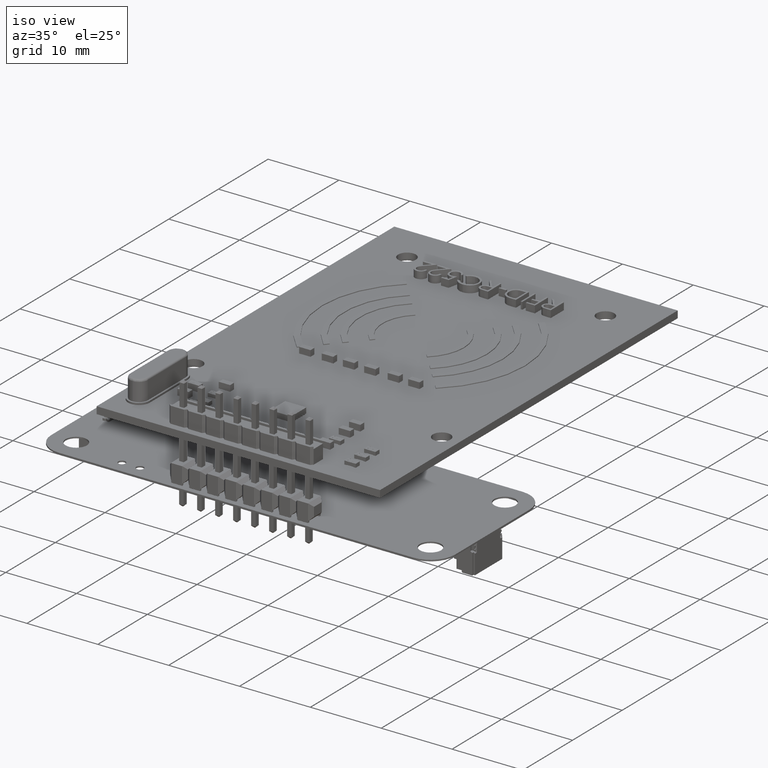
[diagram: clean part render]
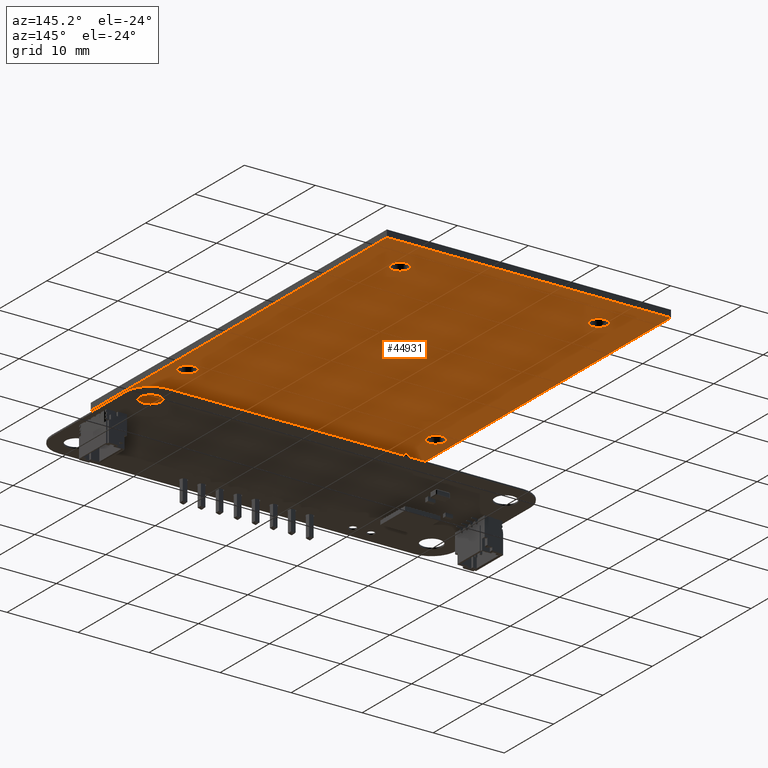
[diagram: tour spotlight — one face highlighted and labeled with its STEP entity id]
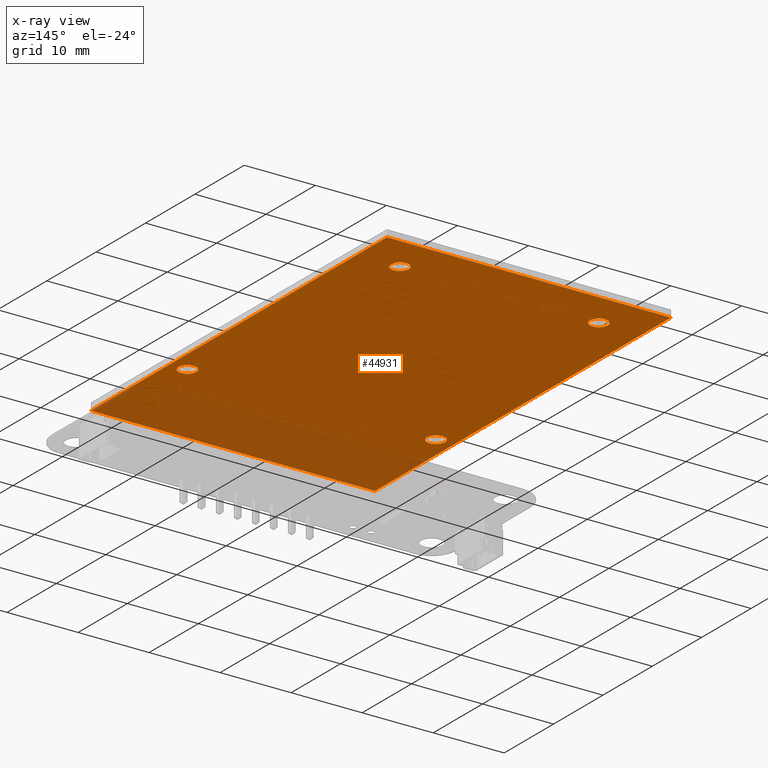
[diagram: x-ray of the same camera — body ghosted, this tour face saturated]
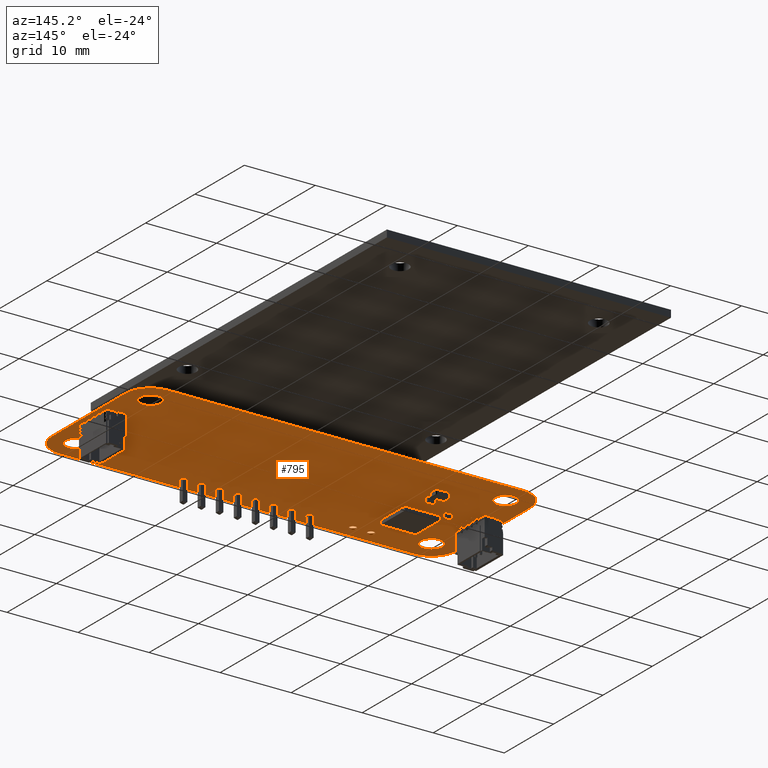
[diagram: tour spotlight — one face highlighted and labeled with its STEP entity id]
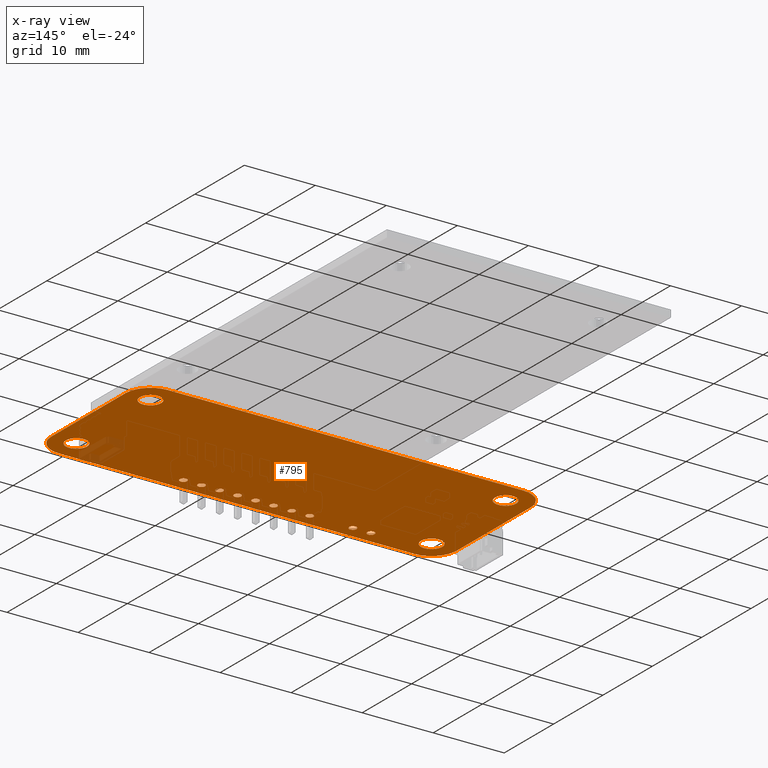
[diagram: x-ray of the same camera — body ghosted, this tour face saturated]
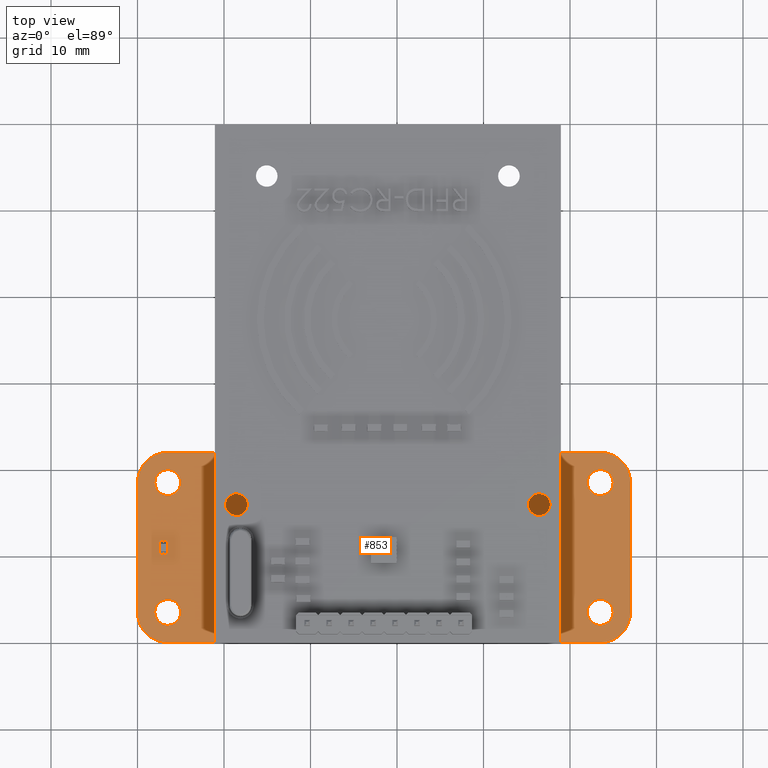
[diagram: tour spotlight — one face highlighted and labeled with its STEP entity id]
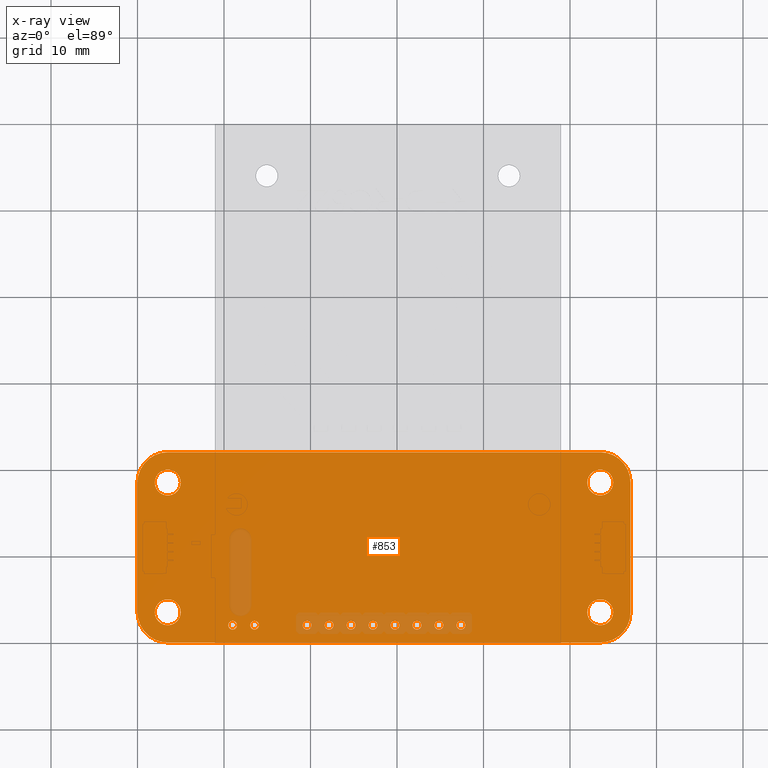
[diagram: x-ray of the same camera — body ghosted, this tour face saturated]
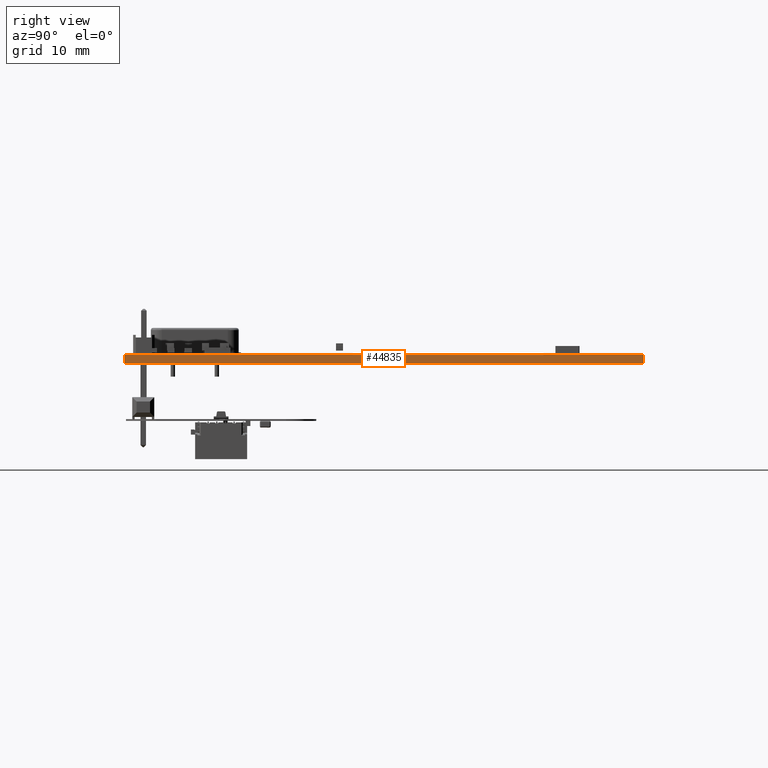
[diagram: tour spotlight — one face highlighted and labeled with its STEP entity id]
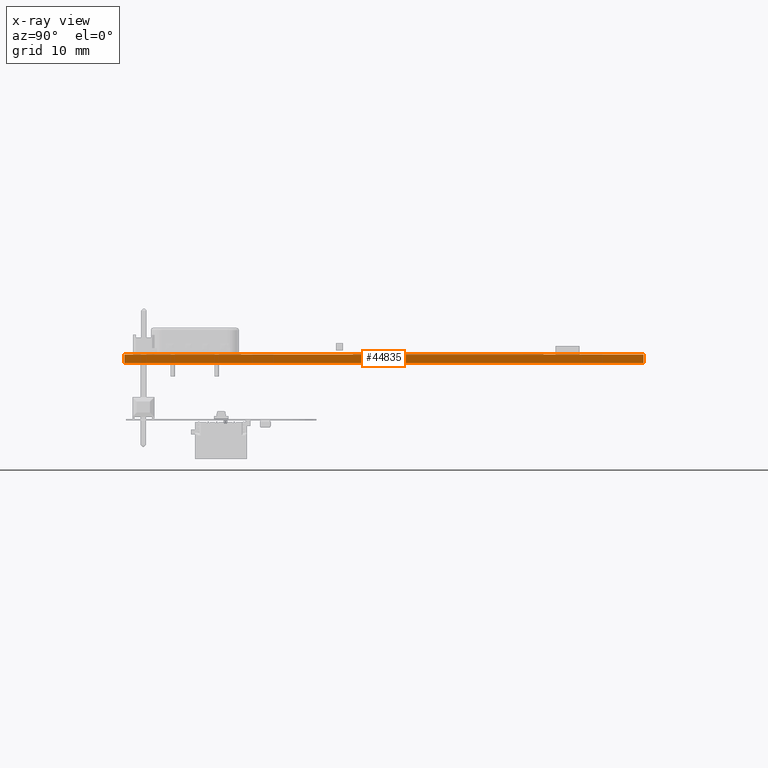
[diagram: x-ray of the same camera — body ghosted, this tour face saturated]
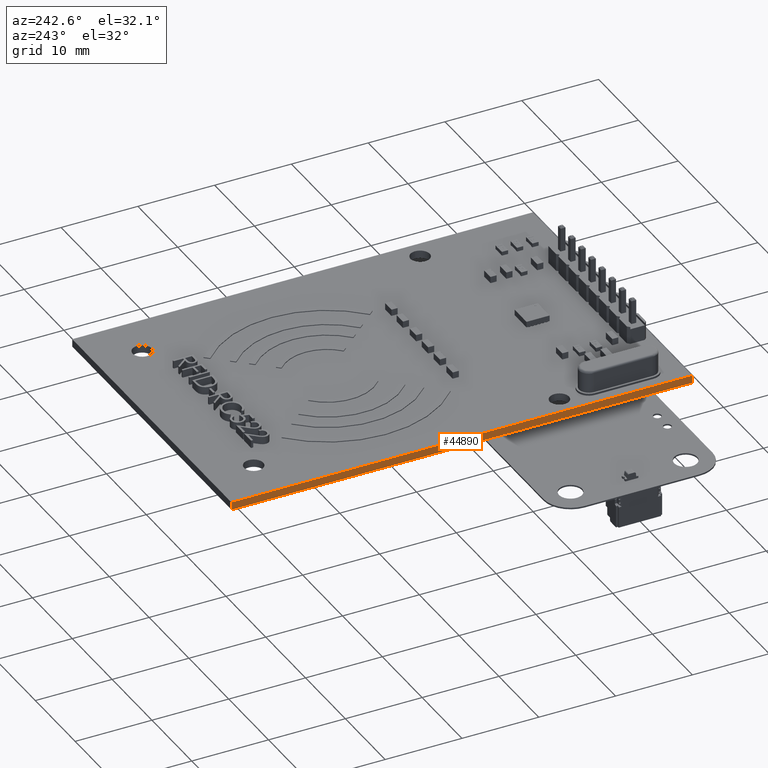
[diagram: tour spotlight — one face highlighted and labeled with its STEP entity id]
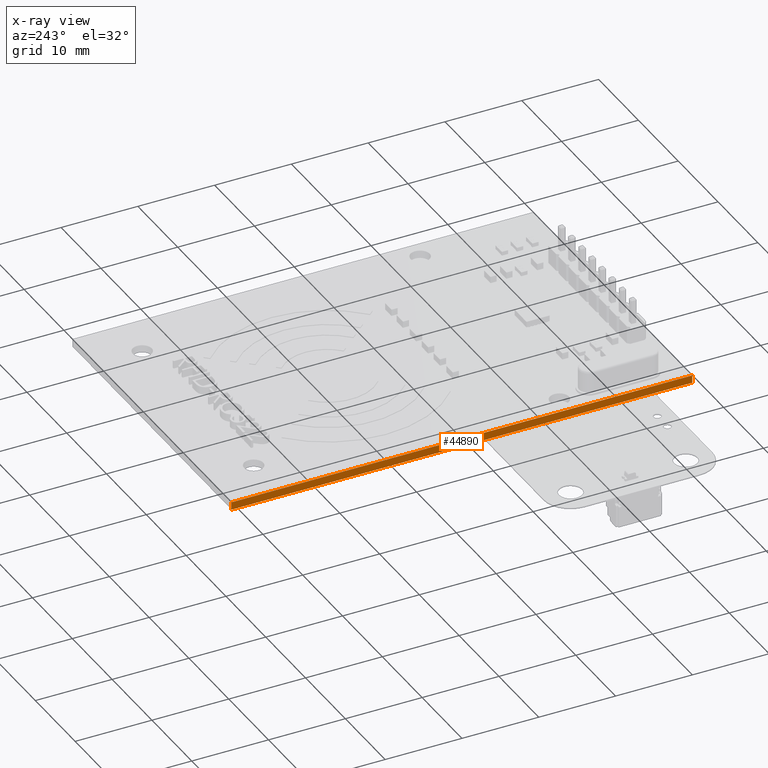
[diagram: x-ray of the same camera — body ghosted, this tour face saturated]
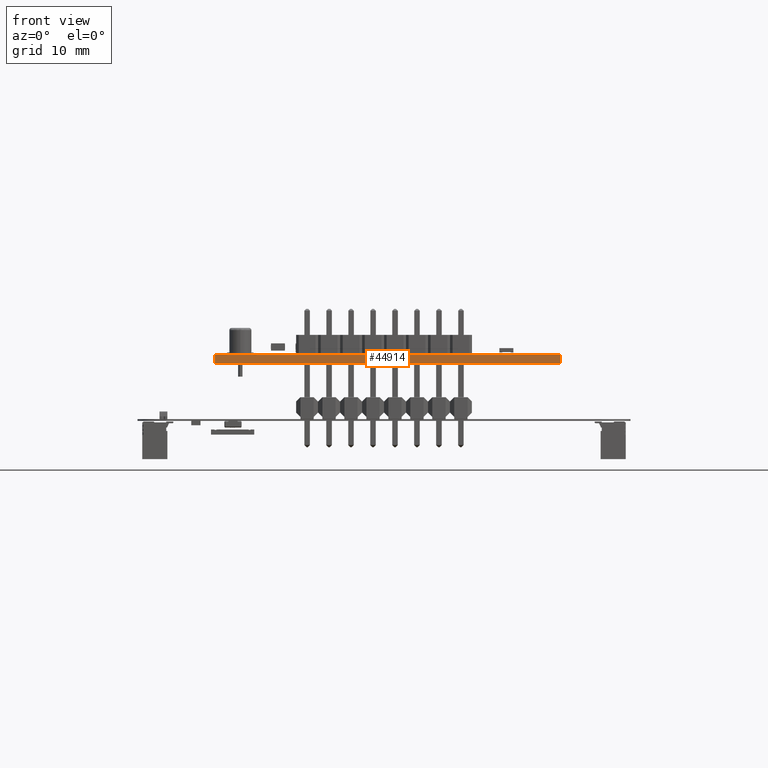
[diagram: tour spotlight — one face highlighted and labeled with its STEP entity id]
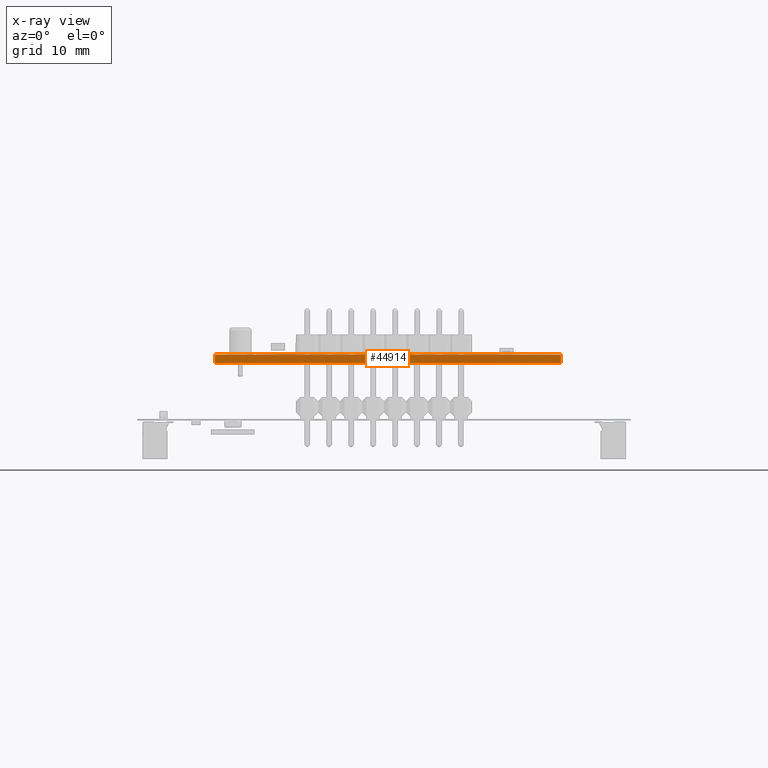
[diagram: x-ray of the same camera — body ghosted, this tour face saturated]
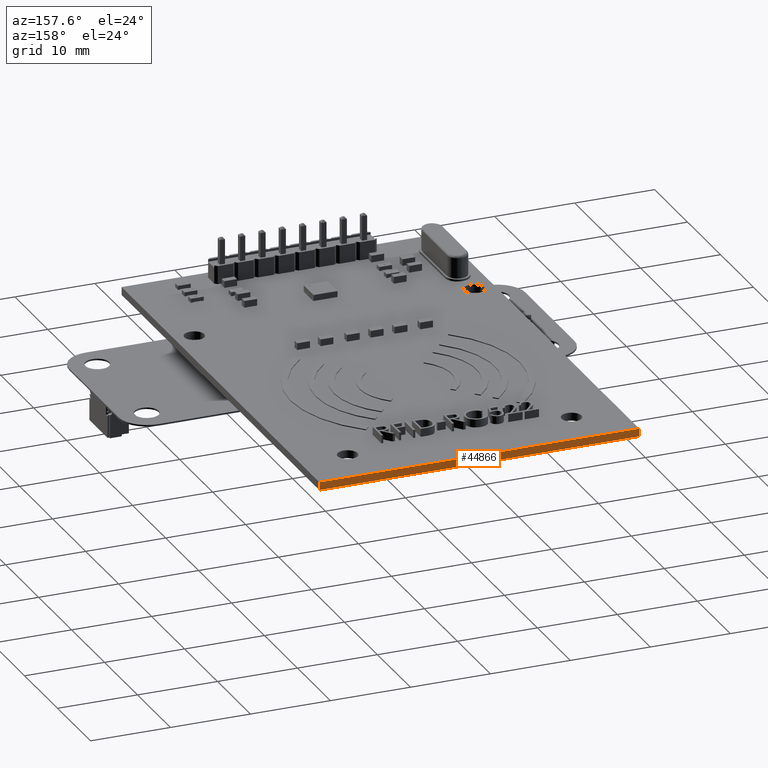
[diagram: tour spotlight — one face highlighted and labeled with its STEP entity id]
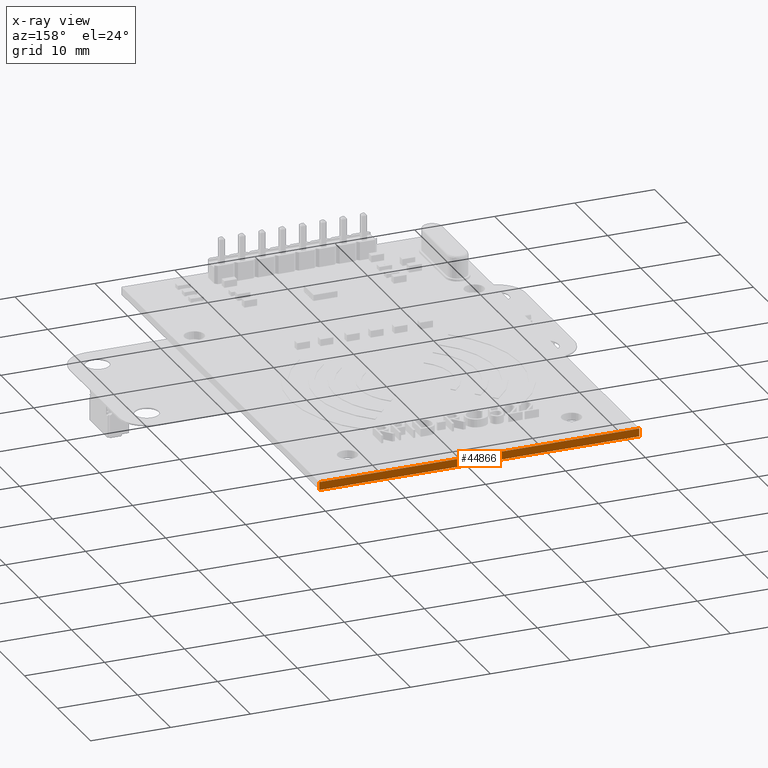
[diagram: x-ray of the same camera — body ghosted, this tour face saturated]
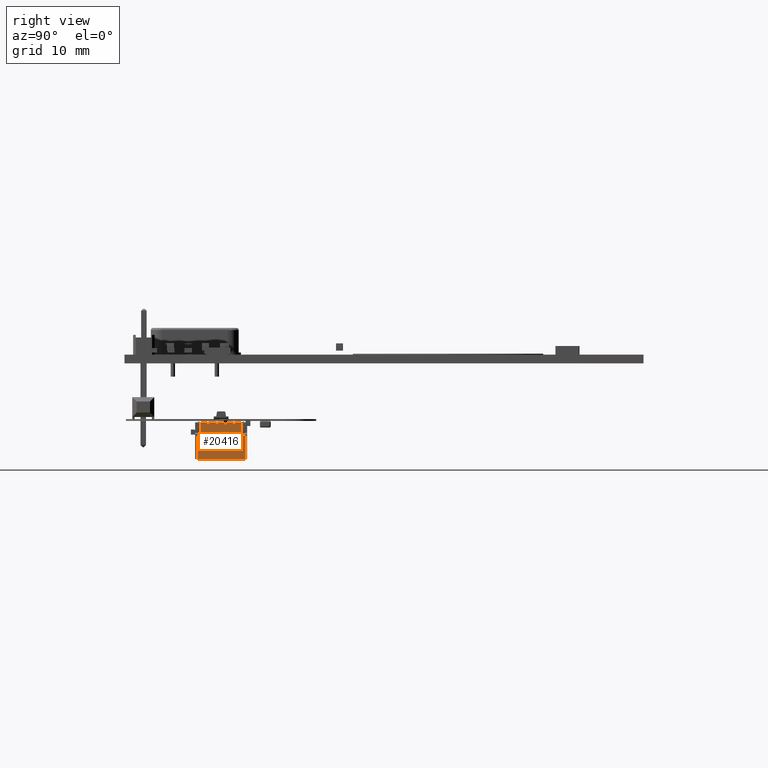
[diagram: tour spotlight — one face highlighted and labeled with its STEP entity id]
A machine part: a face-by-face anatomy tour. The part has 3480 B-rep faces; the first image is the clean iso view, then the 8 largest visible faces are spotlighted one at a time (largest first), each with its STEP entity span.

Face 1 — auxiliary view, entity #44931. An x-ray twin of the same camera follows (body ghosted, this face saturated) — the face is partly hidden behind the body. In plain terms, the highlighted planar face has unit normal (0, 0, 1).
Definition (entity closure, byte-faithful):
#42984 = VERTEX_POINT('',#42985);
#42985 = CARTESIAN_POINT('',(3.75,-16.,0.));
#43003 = VERTEX_POINT('',#43004);
#43004 = CARTESIAN_POINT('',(1.25,-16.,0.));
#43010 = EDGE_CURVE('',#42984,#43003,#43011,.T.);
#43011 = CIRCLE('',#43012,1.25);
#43012 = AXIS2_PLACEMENT_3D('',#43013,#43014,#43015);
#43013 = CARTESIAN_POINT('',(2.5,-16.,0.));
#43014 = DIRECTION('',(0.,0.,-1.));
#43015 = DIRECTION('',(1.,0.,0.));
#43026 = VERTEX_POINT('',#43027);
#43027 = CARTESIAN_POINT('',(38.75,-16.,0.));
#43045 = VERTEX_POINT('',#43046);
#43046 = CARTESIAN_POINT('',(36.25,-16.,0.));
#43052 = EDGE_CURVE('',#43045,#43026,#43053,.T.);
#43053 = CIRCLE('',#43054,1.25);
#43054 = AXIS2_PLACEMENT_3D('',#43055,#43056,#43057);
#43055 = CARTESIAN_POINT('',(37.5,-16.,0.));
#43056 = DIRECTION('',(-0.,0.,1.));
#43057 = DIRECTION('',(1.,0.,0.));
#43068 = VERTEX_POINT('',#43069);
#43069 = CARTESIAN_POINT('',(35.25,-54.,0.));
#43087 = VERTEX_POINT('',#43088);
#43088 = CARTESIAN_POINT('',(32.75,-54.,0.));
#43094 = EDGE_CURVE('',#43087,#43068,#43095,.T.);
#43095 = CIRCLE('',#43096,1.25);
#43096 = AXIS2_PLACEMENT_3D('',#43097,#43098,#43099);
#43097 = CARTESIAN_POINT('',(34.,-54.,0.));
#43098 = DIRECTION('',(-0.,0.,1.));
#43099 = DIRECTION('',(1.,0.,0.));
#43110 = VERTEX_POINT('',#43111);
#43111 = CARTESIAN_POINT('',(7.25,-54.,0.));
#43129 = VERTEX_POINT('',#43130);
#43130 = CARTESIAN_POINT('',(4.75,-54.,0.));
#43136 = EDGE_CURVE('',#43110,#43129,#43137,.T.);
#43137 = CIRCLE('',#43138,1.25);
#43138 = AXIS2_PLACEMENT_3D('',#43139,#43140,#43141);
#43139 = CARTESIAN_POINT('',(6.,-54.,0.));
#43140 = DIRECTION('',(0.,0.,-1.));
#43141 = DIRECTION('',(1.,0.,0.));
#44839 = EDGE_CURVE('',#44840,#44842,#44844,.T.);
#44840 = VERTEX_POINT('',#44841);
#44841 = CARTESIAN_POINT('',(0.,0.,0.));
#44842 = VERTEX_POINT('',#44843);
#44843 = CARTESIAN_POINT('',(7.347880794884E-15,-60.,0.));
#44844 = LINE('',#44845,#44846);
#44845 = CARTESIAN_POINT('',(0.,0.,0.));
#44846 = VECTOR('',#44847,1.);
#44847 = DIRECTION('',(1.224646799147E-16,-1.,0.));
#44870 = EDGE_CURVE('',#44842,#44871,#44873,.T.);
#44871 = VERTEX_POINT('',#44872);
#44872 = CARTESIAN_POINT('',(40.,-60.,0.));
#44873 = LINE('',#44874,#44875);
#44874 = CARTESIAN_POINT('',(7.347880794884E-15,-60.,0.));
#44875 = VECTOR('',#44876,1.);
#44876 = DIRECTION('',(1.,0.,0.));
#44894 = EDGE_CURVE('',#44871,#44895,#44897,.T.);
#44895 = VERTEX_POINT('',#44896);
#44896 = CARTESIAN_POINT('',(40.,0.,0.));
#44897 = LINE('',#44898,#44899);
#44898 = CARTESIAN_POINT('',(40.,0.,0.));
#44899 = VECTOR('',#44900,1.);
#44900 = DIRECTION('',(-0.,1.,-0.));
#44918 = EDGE_CURVE('',#44895,#44840,#44919,.T.);
#44919 = LINE('',#44920,#44921);
#44920 = CARTESIAN_POINT('',(0.,0.,0.));
#44921 = VECTOR('',#44922,1.);
#44922 = DIRECTION('',(-1.,-0.,-0.));
#44931 = ADVANCED_FACE('',(#44932,#44942,#44952,#44962,#44972),#44978,
  .F.);
#44932 = FACE_BOUND('',#44933,.T.);
#44933 = EDGE_LOOP('',(#44934,#44935));
#44934 = ORIENTED_EDGE('',*,*,#43010,.F.);
#44935 = ORIENTED_EDGE('',*,*,#44936,.F.);
#44936 = EDGE_CURVE('',#43003,#42984,#44937,.T.);
#44937 = CIRCLE('',#44938,1.25);
#44938 = AXIS2_PLACEMENT_3D('',#44939,#44940,#44941);
#44939 = CARTESIAN_POINT('',(2.5,-16.,0.));
#44940 = DIRECTION('',(0.,0.,-1.));
#44941 = DIRECTION('',(1.,0.,0.));
#44942 = FACE_BOUND('',#44943,.T.);
#44943 = EDGE_LOOP('',(#44944,#44951));
#44944 = ORIENTED_EDGE('',*,*,#44945,.T.);
#44945 = EDGE_CURVE('',#43026,#43045,#44946,.T.);
#44946 = CIRCLE('',#44947,1.25);
#44947 = AXIS2_PLACEMENT_3D('',#44948,#44949,#44950);
#44948 = CARTESIAN_POINT('',(37.5,-16.,0.));
#44949 = DIRECTION('',(-0.,0.,1.));
#44950 = DIRECTION('',(1.,0.,0.));
#44951 = ORIENTED_EDGE('',*,*,#43052,.T.);
#44952 = FACE_BOUND('',#44953,.T.);
#44953 = EDGE_LOOP('',(#44954,#44961));
#44954 = ORIENTED_EDGE('',*,*,#44955,.T.);
#44955 = EDGE_CURVE('',#43068,#43087,#44956,.T.);
#44956 = CIRCLE('',#44957,1.25);
#44957 = AXIS2_PLACEMENT_3D('',#44958,#44959,#44960);
#44958 = CARTESIAN_POINT('',(34.,-54.,0.));
#44959 = DIRECTION('',(-0.,0.,1.));
#44960 = DIRECTION('',(1.,0.,0.));
#44961 = ORIENTED_EDGE('',*,*,#43094,.T.);
#44962 = FACE_BOUND('',#44963,.T.);
#44963 = EDGE_LOOP('',(#44964,#44965));
#44964 = ORIENTED_EDGE('',*,*,#43136,.F.);
#44965 = ORIENTED_EDGE('',*,*,#44966,.F.);
#44966 = EDGE_CURVE('',#43129,#43110,#44967,.T.);
#44967 = CIRCLE('',#44968,1.25);
#44968 = AXIS2_PLACEMENT_3D('',#44969,#44970,#44971);
#44969 = CARTESIAN_POINT('',(6.,-54.,0.));
#44970 = DIRECTION('',(0.,0.,-1.));
#44971 = DIRECTION('',(1.,0.,0.));
#44972 = FACE_BOUND('',#44973,.T.);
#44973 = EDGE_LOOP('',(#44974,#44975,#44976,#44977));
#44974 = ORIENTED_EDGE('',*,*,#44839,.F.);
#44975 = ORIENTED_EDGE('',*,*,#44918,.F.);
#44976 = ORIENTED_EDGE('',*,*,#44894,.F.);
#44977 = ORIENTED_EDGE('',*,*,#44870,.F.);
#44978 = PLANE('',#44979);
#44979 = AXIS2_PLACEMENT_3D('',#44980,#44981,#44982);
#44980 = CARTESIAN_POINT('',(0.,0.,0.));
#44981 = DIRECTION('',(-0.,0.,1.));
#44982 = DIRECTION('',(1.,0.,0.));

Face 2 — auxiliary view, entity #795. An x-ray twin of the same camera follows (body ghosted, this face saturated) — the face is partly hidden behind the body. In plain terms, the highlighted planar face has unit normal (-0, -0, -1).
Definition (entity closure, byte-faithful):
#82 = VERTEX_POINT('',#83);
#83 = CARTESIAN_POINT('',(0.,3.5,0.));
#100 = VERTEX_POINT('',#101);
#101 = CARTESIAN_POINT('',(-6.661338147751E-16,18.5,0.));
#107 = EDGE_CURVE('',#82,#100,#108,.T.);
#108 = LINE('',#109,#110);
#109 = CARTESIAN_POINT('',(0.,3.5,0.));
#110 = VECTOR('',#111,1.);
#111 = DIRECTION('',(0.,1.,0.));
#132 = VERTEX_POINT('',#133);
#133 = CARTESIAN_POINT('',(3.5,22.,0.));
#139 = EDGE_CURVE('',#100,#132,#140,.T.);
#140 = CIRCLE('',#141,3.499568992062);
#141 = AXIS2_PLACEMENT_3D('',#142,#143,#144);
#142 = CARTESIAN_POINT('',(3.499568965517,18.500431034483,0.));
#143 = DIRECTION('',(0.,0.,-1.));
#144 = DIRECTION('',(-0.999999992415,-1.231678768832E-04,-0.));
#164 = VERTEX_POINT('',#165);
#165 = CARTESIAN_POINT('',(53.5,22.,0.));
#171 = EDGE_CURVE('',#132,#164,#172,.T.);
#172 = LINE('',#173,#174);
#173 = CARTESIAN_POINT('',(3.5,22.,0.));
#174 = VECTOR('',#175,1.);
#175 = DIRECTION('',(1.,0.,0.));
#196 = VERTEX_POINT('',#197);
#197 = CARTESIAN_POINT('',(57.,18.5,0.));
#203 = EDGE_CURVE('',#164,#196,#204,.T.);
#204 = CIRCLE('',#205,3.499568992062);
#205 = AXIS2_PLACEMENT_3D('',#206,#207,#208);
#206 = CARTESIAN_POINT('',(53.500431034483,18.500431034483,0.));
#207 = DIRECTION('',(0.,0.,-1.));
#208 = DIRECTION('',(-1.231678768832E-04,0.999999992415,0.));
#228 = VERTEX_POINT('',#229);
#229 = CARTESIAN_POINT('',(57.,3.5,0.));
#235 = EDGE_CURVE('',#196,#228,#236,.T.);
#236 = LINE('',#237,#238);
#237 = CARTESIAN_POINT('',(57.,18.5,0.));
#238 = VECTOR('',#239,1.);
#239 = DIRECTION('',(0.,-1.,0.));
#260 = VERTEX_POINT('',#261);
#261 = CARTESIAN_POINT('',(53.5,-2.22044604925E-16,0.));
#267 = EDGE_CURVE('',#228,#260,#268,.T.);
#268 = CIRCLE('',#269,3.499568992062);
#269 = AXIS2_PLACEMENT_3D('',#270,#271,#272);
#270 = CARTESIAN_POINT('',(53.500431034483,3.499568965517,0.));
#271 = DIRECTION('',(0.,0.,-1.));
#272 = DIRECTION('',(0.999999992415,1.231678768835E-04,0.));
#292 = VERTEX_POINT('',#293);
#293 = CARTESIAN_POINT('',(3.5,0.,0.));
#299 = EDGE_CURVE('',#260,#292,#300,.T.);
#300 = LINE('',#301,#302);
#301 = CARTESIAN_POINT('',(53.5,0.,0.));
#302 = VECTOR('',#303,1.);
#303 = DIRECTION('',(-1.,0.,0.));
#322 = EDGE_CURVE('',#292,#82,#323,.T.);
#323 = CIRCLE('',#324,3.499568992062);
#324 = AXIS2_PLACEMENT_3D('',#325,#326,#327);
#325 = CARTESIAN_POINT('',(3.499568965517,3.499568965517,0.));
#326 = DIRECTION('',(0.,0.,-1.));
#327 = DIRECTION('',(1.231678768834E-04,-0.999999992415,0.));
#338 = VERTEX_POINT('',#339);
#339 = CARTESIAN_POINT('',(20.12,2.,0.));
#355 = EDGE_CURVE('',#338,#338,#356,.T.);
#356 = CIRCLE('',#357,0.51);
#357 = AXIS2_PLACEMENT_3D('',#358,#359,#360);
#358 = CARTESIAN_POINT('',(19.61,2.,0.));
#359 = DIRECTION('',(0.,0.,1.));
#360 = DIRECTION('',(1.,0.,-0.));
#371 = VERTEX_POINT('',#372);
#372 = CARTESIAN_POINT('',(25.2,2.,0.));
#388 = EDGE_CURVE('',#371,#371,#389,.T.);
#389 = CIRCLE('',#390,0.51);
#390 = AXIS2_PLACEMENT_3D('',#391,#392,#393);
#391 = CARTESIAN_POINT('',(24.69,2.,0.));
#392 = DIRECTION('',(0.,0.,1.));
#393 = DIRECTION('',(1.,0.,-0.));
#404 = VERTEX_POINT('',#405);
#405 = CARTESIAN_POINT('',(22.66,2.,0.));
#421 = EDGE_CURVE('',#404,#404,#422,.T.);
#422 = CIRCLE('',#423,0.51);
#423 = AXIS2_PLACEMENT_3D('',#424,#425,#426);
#424 = CARTESIAN_POINT('',(22.15,2.,0.));
#425 = DIRECTION('',(0.,0.,1.));
#426 = DIRECTION('',(1.,0.,-0.));
#437 = VERTEX_POINT('',#438);
#438 = CARTESIAN_POINT('',(5.,3.5,0.));
#454 = EDGE_CURVE('',#437,#437,#455,.T.);
#455 = CIRCLE('',#456,1.5);
#456 = AXIS2_PLACEMENT_3D('',#457,#458,#459);
#457 = CARTESIAN_POINT('',(3.5,3.5,0.));
#458 = DIRECTION('',(0.,0.,1.));
#459 = DIRECTION('',(1.,0.,-0.));
#470 = VERTEX_POINT('',#471);
#471 = CARTESIAN_POINT('',(5.,18.5,0.));
#487 = EDGE_CURVE('',#470,#470,#488,.T.);
#488 = CIRCLE('',#489,1.5);
#489 = AXIS2_PLACEMENT_3D('',#490,#491,#492);
#490 = CARTESIAN_POINT('',(3.5,18.5,0.));
#491 = DIRECTION('',(0.,0.,1.));
#492 = DIRECTION('',(1.,0.,-0.));
#503 = VERTEX_POINT('',#504);
#504 = CARTESIAN_POINT('',(14.048,2.,0.));
#520 = EDGE_CURVE('',#503,#503,#521,.T.);
#521 = CIRCLE('',#522,0.508);
#522 = AXIS2_PLACEMENT_3D('',#523,#524,#525);
#523 = CARTESIAN_POINT('',(13.54,2.,0.));
#524 = DIRECTION('',(0.,0.,1.));
#525 = DIRECTION('',(1.,0.,-0.));
#536 = VERTEX_POINT('',#537);
#537 = CARTESIAN_POINT('',(11.508,2.,0.));
#553 = EDGE_CURVE('',#536,#536,#554,.T.);
#554 = CIRCLE('',#555,0.508);
#555 = AXIS2_PLACEMENT_3D('',#556,#557,#558);
#556 = CARTESIAN_POINT('',(11.,2.,0.));
#557 = DIRECTION('',(0.,0.,1.));
#558 = DIRECTION('',(1.,0.,-0.));
#569 = VERTEX_POINT('',#570);
#570 = CARTESIAN_POINT('',(27.74,2.,0.));
#586 = EDGE_CURVE('',#569,#569,#587,.T.);
#587 = CIRCLE('',#588,0.51);
#588 = AXIS2_PLACEMENT_3D('',#589,#590,#591);
#589 = CARTESIAN_POINT('',(27.23,2.,0.));
#590 = DIRECTION('',(0.,0.,1.));
#591 = DIRECTION('',(1.,0.,-0.));
#602 = VERTEX_POINT('',#603);
#603 = CARTESIAN_POINT('',(32.82,2.,0.));
#619 = EDGE_CURVE('',#602,#602,#620,.T.);
#620 = CIRCLE('',#621,0.51);
#621 = AXIS2_PLACEMENT_3D('',#622,#623,#624);
#622 = CARTESIAN_POINT('',(32.31,2.,0.));
#623 = DIRECTION('',(0.,0.,1.));
#624 = DIRECTION('',(1.,0.,-0.));
#635 = VERTEX_POINT('',#636);
#636 = CARTESIAN_POINT('',(30.28,2.,0.));
#652 = EDGE_CURVE('',#635,#635,#653,.T.);
#653 = CIRCLE('',#654,0.51);
#654 = AXIS2_PLACEMENT_3D('',#655,#656,#657);
#655 = CARTESIAN_POINT('',(29.77,2.,0.));
#656 = DIRECTION('',(0.,0.,1.));
#657 = DIRECTION('',(1.,0.,-0.));
#668 = VERTEX_POINT('',#669);
#669 = CARTESIAN_POINT('',(37.9,2.,0.));
#685 = EDGE_CURVE('',#668,#668,#686,.T.);
#686 = CIRCLE('',#687,0.51);
#687 = AXIS2_PLACEMENT_3D('',#688,#689,#690);
#688 = CARTESIAN_POINT('',(37.39,2.,0.));
#689 = DIRECTION('',(0.,0.,1.));
#690 = DIRECTION('',(1.,0.,-0.));
#701 = VERTEX_POINT('',#702);
#702 = CARTESIAN_POINT('',(35.36,2.,0.));
#718 = EDGE_CURVE('',#701,#701,#719,.T.);
#719 = CIRCLE('',#720,0.51);
#720 = AXIS2_PLACEMENT_3D('',#721,#722,#723);
#721 = CARTESIAN_POINT('',(34.85,2.,0.));
#722 = DIRECTION('',(0.,0.,1.));
#723 = DIRECTION('',(1.,0.,-0.));
#734 = VERTEX_POINT('',#735);
#735 = CARTESIAN_POINT('',(55.,3.5,0.));
#751 = EDGE_CURVE('',#734,#734,#752,.T.);
#752 = CIRCLE('',#753,1.5);
#753 = AXIS2_PLACEMENT_3D('',#754,#755,#756);
#754 = CARTESIAN_POINT('',(53.5,3.5,0.));
#755 = DIRECTION('',(0.,0.,1.));
#756 = DIRECTION('',(1.,0.,-0.));
#767 = VERTEX_POINT('',#768);
#768 = CARTESIAN_POINT('',(55.,18.5,0.));
#784 = EDGE_CURVE('',#767,#767,#785,.T.);
#785 = CIRCLE('',#786,1.5);
#786 = AXIS2_PLACEMENT_3D('',#787,#788,#789);
#787 = CARTESIAN_POINT('',(53.5,18.5,0.));
#788 = DIRECTION('',(0.,0.,1.));
#789 = DIRECTION('',(1.,0.,-0.));
#795 = ADVANCED_FACE('',(#796,#806,#809,#812,#815,#818,#821,#824,#827,
    #830,#833,#836,#839,#842,#845),#848,.T.);
#796 = FACE_BOUND('',#797,.T.);
#797 = EDGE_LOOP('',(#798,#799,#800,#801,#802,#803,#804,#805));
#798 = ORIENTED_EDGE('',*,*,#107,.T.);
#799 = ORIENTED_EDGE('',*,*,#139,.T.);
#800 = ORIENTED_EDGE('',*,*,#171,.T.);
#801 = ORIENTED_EDGE('',*,*,#203,.T.);
#802 = ORIENTED_EDGE('',*,*,#235,.T.);
#803 = ORIENTED_EDGE('',*,*,#267,.T.);
#804 = ORIENTED_EDGE('',*,*,#299,.T.);
#805 = ORIENTED_EDGE('',*,*,#322,.T.);
#806 = FACE_BOUND('',#807,.T.);
#807 = EDGE_LOOP('',(#808));
#808 = ORIENTED_EDGE('',*,*,#355,.T.);
#809 = FACE_BOUND('',#810,.T.);
#810 = EDGE_LOOP('',(#811));
#811 = ORIENTED_EDGE('',*,*,#388,.T.);
#812 = FACE_BOUND('',#813,.T.);
#813 = EDGE_LOOP('',(#814));
#814 = ORIENTED_EDGE('',*,*,#421,.T.);
#815 = FACE_BOUND('',#816,.T.);
#816 = EDGE_LOOP('',(#817));
#817 = ORIENTED_EDGE('',*,*,#454,.T.);
#818 = FACE_BOUND('',#819,.T.);
#819 = EDGE_LOOP('',(#820));
#820 = ORIENTED_EDGE('',*,*,#487,.T.);
#821 = FACE_BOUND('',#822,.T.);
#822 = EDGE_LOOP('',(#823));
#823 = ORIENTED_EDGE('',*,*,#520,.T.);
#824 = FACE_BOUND('',#825,.T.);
#825 = EDGE_LOOP('',(#826));
#826 = ORIENTED_EDGE('',*,*,#553,.T.);
#827 = FACE_BOUND('',#828,.T.);
#828 = EDGE_LOOP('',(#829));
#829 = ORIENTED_EDGE('',*,*,#586,.T.);
#830 = FACE_BOUND('',#831,.T.);
#831 = EDGE_LOOP('',(#832));
#832 = ORIENTED_EDGE('',*,*,#619,.T.);
#833 = FACE_BOUND('',#834,.T.);
#834 = EDGE_LOOP('',(#835));
#835 = ORIENTED_EDGE('',*,*,#652,.T.);
#836 = FACE_BOUND('',#837,.T.);
#837 = EDGE_LOOP('',(#838));
#838 = ORIENTED_EDGE('',*,*,#685,.T.);
#839 = FACE_BOUND('',#840,.T.);
#840 = EDGE_LOOP('',(#841));
#841 = ORIENTED_EDGE('',*,*,#718,.T.);
#842 = FACE_BOUND('',#843,.T.);
#843 = EDGE_LOOP('',(#844));
#844 = ORIENTED_EDGE('',*,*,#751,.T.);
#845 = FACE_BOUND('',#846,.T.);
#846 = EDGE_LOOP('',(#847));
#847 = ORIENTED_EDGE('',*,*,#784,.T.);
#848 = PLANE('',#849);
#849 = AXIS2_PLACEMENT_3D('',#850,#851,#852);
#850 = CARTESIAN_POINT('',(28.5,11.,0.));
#851 = DIRECTION('',(-0.,-0.,-1.));
#852 = DIRECTION('',(-1.,0.,0.));

Face 3 — top view, entity #853. An x-ray twin of the same camera follows (body ghosted, this face saturated) — the face is partly hidden behind the body. In plain terms, the highlighted planar face has unit normal (-0, -0, -1).
Definition (entity closure, byte-faithful):
#84 = VERTEX_POINT('',#85);
#85 = CARTESIAN_POINT('',(0.,3.5,0.1970024));
#91 = EDGE_CURVE('',#84,#92,#94,.T.);
#92 = VERTEX_POINT('',#93);
#93 = CARTESIAN_POINT('',(-6.661338147751E-16,18.5,0.1970024));
#94 = LINE('',#95,#96);
#95 = CARTESIAN_POINT('',(0.,3.5,0.1970024));
#96 = VECTOR('',#97,1.);
#97 = DIRECTION('',(0.,1.,0.));
#122 = EDGE_CURVE('',#92,#123,#125,.T.);
#123 = VERTEX_POINT('',#124);
#124 = CARTESIAN_POINT('',(3.5,22.,0.1970024));
#125 = CIRCLE('',#126,3.499568992062);
#126 = AXIS2_PLACEMENT_3D('',#127,#128,#129);
#127 = CARTESIAN_POINT('',(3.499568965517,18.500431034483,0.1970024));
#128 = DIRECTION('',(0.,0.,-1.));
#129 = DIRECTION('',(-0.999999992415,-1.231678768832E-04,-0.));
#155 = EDGE_CURVE('',#123,#156,#158,.T.);
#156 = VERTEX_POINT('',#157);
#157 = CARTESIAN_POINT('',(53.5,22.,0.1970024));
#158 = LINE('',#159,#160);
#159 = CARTESIAN_POINT('',(3.5,22.,0.1970024));
#160 = VECTOR('',#161,1.);
#161 = DIRECTION('',(1.,0.,0.));
#186 = EDGE_CURVE('',#156,#187,#189,.T.);
#187 = VERTEX_POINT('',#188);
#188 = CARTESIAN_POINT('',(57.,18.5,0.1970024));
#189 = CIRCLE('',#190,3.499568992062);
#190 = AXIS2_PLACEMENT_3D('',#191,#192,#193);
#191 = CARTESIAN_POINT('',(53.500431034483,18.500431034483,0.1970024));
#192 = DIRECTION('',(0.,0.,-1.));
#193 = DIRECTION('',(-1.231678768832E-04,0.999999992415,0.));
#219 = EDGE_CURVE('',#187,#220,#222,.T.);
#220 = VERTEX_POINT('',#221);
#221 = CARTESIAN_POINT('',(57.,3.5,0.1970024));
#222 = LINE('',#223,#224);
#223 = CARTESIAN_POINT('',(57.,18.5,0.1970024));
#224 = VECTOR('',#225,1.);
#225 = DIRECTION('',(0.,-1.,0.));
#250 = EDGE_CURVE('',#220,#251,#253,.T.);
#251 = VERTEX_POINT('',#252);
#252 = CARTESIAN_POINT('',(53.5,-2.22044604925E-16,0.1970024));
#253 = CIRCLE('',#254,3.499568992062);
#254 = AXIS2_PLACEMENT_3D('',#255,#256,#257);
#255 = CARTESIAN_POINT('',(53.500431034483,3.499568965517,0.1970024));
#256 = DIRECTION('',(0.,0.,-1.));
#257 = DIRECTION('',(0.999999992415,1.231678768835E-04,0.));
#283 = EDGE_CURVE('',#251,#284,#286,.T.);
#284 = VERTEX_POINT('',#285);
#285 = CARTESIAN_POINT('',(3.5,0.,0.1970024));
#286 = LINE('',#287,#288);
#287 = CARTESIAN_POINT('',(53.5,0.,0.1970024));
#288 = VECTOR('',#289,1.);
#289 = DIRECTION('',(-1.,0.,0.));
#314 = EDGE_CURVE('',#284,#84,#315,.T.);
#315 = CIRCLE('',#316,3.499568992062);
#316 = AXIS2_PLACEMENT_3D('',#317,#318,#319);
#317 = CARTESIAN_POINT('',(3.499568965517,3.499568965517,0.1970024));
#318 = DIRECTION('',(0.,0.,-1.));
#319 = DIRECTION('',(1.231678768834E-04,-0.999999992415,0.));
#340 = VERTEX_POINT('',#341);
#341 = CARTESIAN_POINT('',(20.12,2.,0.1970024));
#347 = EDGE_CURVE('',#340,#340,#348,.T.);
#348 = CIRCLE('',#349,0.51);
#349 = AXIS2_PLACEMENT_3D('',#350,#351,#352);
#350 = CARTESIAN_POINT('',(19.61,2.,0.1970024));
#351 = DIRECTION('',(0.,0.,1.));
#352 = DIRECTION('',(1.,0.,-0.));
#373 = VERTEX_POINT('',#374);
#374 = CARTESIAN_POINT('',(25.2,2.,0.1970024));
#380 = EDGE_CURVE('',#373,#373,#381,.T.);
#381 = CIRCLE('',#382,0.51);
#382 = AXIS2_PLACEMENT_3D('',#383,#384,#385);
#383 = CARTESIAN_POINT('',(24.69,2.,0.1970024));
#384 = DIRECTION('',(0.,0.,1.));
#385 = DIRECTION('',(1.,0.,-0.));
#406 = VERTEX_POINT('',#407);
#407 = CARTESIAN_POINT('',(22.66,2.,0.1970024));
#413 = EDGE_CURVE('',#406,#406,#414,.T.);
#414 = CIRCLE('',#415,0.51);
#415 = AXIS2_PLACEMENT_3D('',#416,#417,#418);
#416 = CARTESIAN_POINT('',(22.15,2.,0.1970024));
#417 = DIRECTION('',(0.,0.,1.));
#418 = DIRECTION('',(1.,0.,-0.));
#439 = VERTEX_POINT('',#440);
#440 = CARTESIAN_POINT('',(5.,3.5,0.1970024));
#446 = EDGE_CURVE('',#439,#439,#447,.T.);
#447 = CIRCLE('',#448,1.5);
#448 = AXIS2_PLACEMENT_3D('',#449,#450,#451);
#449 = CARTESIAN_POINT('',(3.5,3.5,0.1970024));
#450 = DIRECTION('',(0.,0.,1.));
#451 = DIRECTION('',(1.,0.,-0.));
#472 = VERTEX_POINT('',#473);
#473 = CARTESIAN_POINT('',(5.,18.5,0.1970024));
#479 = EDGE_CURVE('',#472,#472,#480,.T.);
#480 = CIRCLE('',#481,1.5);
#481 = AXIS2_PLACEMENT_3D('',#482,#483,#484);
#482 = CARTESIAN_POINT('',(3.5,18.5,0.1970024));
#483 = DIRECTION('',(0.,0.,1.));
#484 = DIRECTION('',(1.,0.,-0.));
#505 = VERTEX_POINT('',#506);
#506 = CARTESIAN_POINT('',(14.048,2.,0.1970024));
#512 = EDGE_CURVE('',#505,#505,#513,.T.);
#513 = CIRCLE('',#514,0.508);
#514 = AXIS2_PLACEMENT_3D('',#515,#516,#517);
#515 = CARTESIAN_POINT('',(13.54,2.,0.1970024));
#516 = DIRECTION('',(0.,0.,1.));
#517 = DIRECTION('',(1.,0.,-0.));
#538 = VERTEX_POINT('',#539);
#539 = CARTESIAN_POINT('',(11.508,2.,0.1970024));
#545 = EDGE_CURVE('',#538,#538,#546,.T.);
#546 = CIRCLE('',#547,0.508);
#547 = AXIS2_PLACEMENT_3D('',#548,#549,#550);
#548 = CARTESIAN_POINT('',(11.,2.,0.1970024));
#549 = DIRECTION('',(0.,0.,1.));
#550 = DIRECTION('',(1.,0.,-0.));
#571 = VERTEX_POINT('',#572);
#572 = CARTESIAN_POINT('',(27.74,2.,0.1970024));
#578 = EDGE_CURVE('',#571,#571,#579,.T.);
#579 = CIRCLE('',#580,0.51);
#580 = AXIS2_PLACEMENT_3D('',#581,#582,#583);
#581 = CARTESIAN_POINT('',(27.23,2.,0.1970024));
#582 = DIRECTION('',(0.,0.,1.));
#583 = DIRECTION('',(1.,0.,-0.));
#604 = VERTEX_POINT('',#605);
#605 = CARTESIAN_POINT('',(32.82,2.,0.1970024));
#611 = EDGE_CURVE('',#604,#604,#612,.T.);
#612 = CIRCLE('',#613,0.51);
#613 = AXIS2_PLACEMENT_3D('',#614,#615,#616);
#614 = CARTESIAN_POINT('',(32.31,2.,0.1970024));
#615 = DIRECTION('',(0.,0.,1.));
#616 = DIRECTION('',(1.,0.,-0.));
#637 = VERTEX_POINT('',#638);
#638 = CARTESIAN_POINT('',(30.28,2.,0.1970024));
#644 = EDGE_CURVE('',#637,#637,#645,.T.);
#645 = CIRCLE('',#646,0.51);
#646 = AXIS2_PLACEMENT_3D('',#647,#648,#649);
#647 = CARTESIAN_POINT('',(29.77,2.,0.1970024));
#648 = DIRECTION('',(0.,0.,1.));
#649 = DIRECTION('',(1.,0.,-0.));
#670 = VERTEX_POINT('',#671);
#671 = CARTESIAN_POINT('',(37.9,2.,0.1970024));
#677 = EDGE_CURVE('',#670,#670,#678,.T.);
#678 = CIRCLE('',#679,0.51);
#679 = AXIS2_PLACEMENT_3D('',#680,#681,#682);
#680 = CARTESIAN_POINT('',(37.39,2.,0.1970024));
#681 = DIRECTION('',(0.,0.,1.));
#682 = DIRECTION('',(1.,0.,-0.));
#703 = VERTEX_POINT('',#704);
#704 = CARTESIAN_POINT('',(35.36,2.,0.1970024));
#710 = EDGE_CURVE('',#703,#703,#711,.T.);
#711 = CIRCLE('',#712,0.51);
#712 = AXIS2_PLACEMENT_3D('',#713,#714,#715);
#713 = CARTESIAN_POINT('',(34.85,2.,0.1970024));
#714 = DIRECTION('',(0.,0.,1.));
#715 = DIRECTION('',(1.,0.,-0.));
#736 = VERTEX_POINT('',#737);
#737 = CARTESIAN_POINT('',(55.,3.5,0.1970024));
#743 = EDGE_CURVE('',#736,#736,#744,.T.);
#744 = CIRCLE('',#745,1.5);
#745 = AXIS2_PLACEMENT_3D('',#746,#747,#748);
#746 = CARTESIAN_POINT('',(53.5,3.5,0.1970024));
#747 = DIRECTION('',(0.,0.,1.));
#748 = DIRECTION('',(1.,0.,-0.));
#769 = VERTEX_POINT('',#770);
#770 = CARTESIAN_POINT('',(55.,18.5,0.1970024));
#776 = EDGE_CURVE('',#769,#769,#777,.T.);
#777 = CIRCLE('',#778,1.5);
#778 = AXIS2_PLACEMENT_3D('',#779,#780,#781);
#779 = CARTESIAN_POINT('',(53.5,18.5,0.1970024));
#780 = DIRECTION('',(0.,0.,1.));
#781 = DIRECTION('',(1.,0.,-0.));
#853 = ADVANCED_FACE('',(#854,#864,#867,#870,#873,#876,#879,#882,#885,
    #888,#891,#894,#897,#900,#903),#906,.F.);
#854 = FACE_BOUND('',#855,.F.);
#855 = EDGE_LOOP('',(#856,#857,#858,#859,#860,#861,#862,#863));
#856 = ORIENTED_EDGE('',*,*,#91,.T.);
#857 = ORIENTED_EDGE('',*,*,#122,.T.);
#858 = ORIENTED_EDGE('',*,*,#155,.T.);
#859 = ORIENTED_EDGE('',*,*,#186,.T.);
#860 = ORIENTED_EDGE('',*,*,#219,.T.);
#861 = ORIENTED_EDGE('',*,*,#250,.T.);
#862 = ORIENTED_EDGE('',*,*,#283,.T.);
#863 = ORIENTED_EDGE('',*,*,#314,.T.);
#864 = FACE_BOUND('',#865,.F.);
#865 = EDGE_LOOP('',(#866));
#866 = ORIENTED_EDGE('',*,*,#347,.T.);
#867 = FACE_BOUND('',#868,.F.);
#868 = EDGE_LOOP('',(#869));
#869 = ORIENTED_EDGE('',*,*,#380,.T.);
#870 = FACE_BOUND('',#871,.F.);
#871 = EDGE_LOOP('',(#872));
#872 = ORIENTED_EDGE('',*,*,#413,.T.);
#873 = FACE_BOUND('',#874,.F.);
#874 = EDGE_LOOP('',(#875));
#875 = ORIENTED_EDGE('',*,*,#446,.T.);
#876 = FACE_BOUND('',#877,.F.);
#877 = EDGE_LOOP('',(#878));
#878 = ORIENTED_EDGE('',*,*,#479,.T.);
#879 = FACE_BOUND('',#880,.F.);
#880 = EDGE_LOOP('',(#881));
#881 = ORIENTED_EDGE('',*,*,#512,.T.);
#882 = FACE_BOUND('',#883,.F.);
#883 = EDGE_LOOP('',(#884));
#884 = ORIENTED_EDGE('',*,*,#545,.T.);
#885 = FACE_BOUND('',#886,.F.);
#886 = EDGE_LOOP('',(#887));
#887 = ORIENTED_EDGE('',*,*,#578,.T.);
#888 = FACE_BOUND('',#889,.F.);
#889 = EDGE_LOOP('',(#890));
#890 = ORIENTED_EDGE('',*,*,#611,.T.);
#891 = FACE_BOUND('',#892,.F.);
#892 = EDGE_LOOP('',(#893));
#893 = ORIENTED_EDGE('',*,*,#644,.T.);
#894 = FACE_BOUND('',#895,.F.);
#895 = EDGE_LOOP('',(#896));
#896 = ORIENTED_EDGE('',*,*,#677,.T.);
#897 = FACE_BOUND('',#898,.F.);
#898 = EDGE_LOOP('',(#899));
#899 = ORIENTED_EDGE('',*,*,#710,.T.);
#900 = FACE_BOUND('',#901,.F.);
#901 = EDGE_LOOP('',(#902));
#902 = ORIENTED_EDGE('',*,*,#743,.T.);
#903 = FACE_BOUND('',#904,.F.);
#904 = EDGE_LOOP('',(#905));
#905 = ORIENTED_EDGE('',*,*,#776,.T.);
#906 = PLANE('',#907);
#907 = AXIS2_PLACEMENT_3D('',#908,#909,#910);
#908 = CARTESIAN_POINT('',(28.5,11.,0.1970024));
#909 = DIRECTION('',(-0.,-0.,-1.));
#910 = DIRECTION('',(-1.,0.,0.));

Face 4 — right view, entity #44835. An x-ray twin of the same camera follows (body ghosted, this face saturated) — the face is partly hidden behind the body. In plain terms, the highlighted planar face has unit normal (-1, -0, 0).
Definition (entity closure, byte-faithful):
#44799 = EDGE_CURVE('',#44800,#44802,#44804,.T.);
#44800 = VERTEX_POINT('',#44801);
#44801 = CARTESIAN_POINT('',(0.,0.,1.));
#44802 = VERTEX_POINT('',#44803);
#44803 = CARTESIAN_POINT('',(7.347880794884E-15,-60.,1.));
#44804 = LINE('',#44805,#44806);
#44805 = CARTESIAN_POINT('',(0.,0.,1.));
#44806 = VECTOR('',#44807,1.);
#44807 = DIRECTION('',(1.224646799147E-16,-1.,0.));
#44835 = ADVANCED_FACE('',(#44836),#44861,.F.);
#44836 = FACE_BOUND('',#44837,.T.);
#44837 = EDGE_LOOP('',(#44838,#44848,#44854,#44855));
#44838 = ORIENTED_EDGE('',*,*,#44839,.T.);
#44839 = EDGE_CURVE('',#44840,#44842,#44844,.T.);
#44840 = VERTEX_POINT('',#44841);
#44841 = CARTESIAN_POINT('',(0.,0.,0.));
#44842 = VERTEX_POINT('',#44843);
#44843 = CARTESIAN_POINT('',(7.347880794884E-15,-60.,0.));
#44844 = LINE('',#44845,#44846);
#44845 = CARTESIAN_POINT('',(0.,0.,0.));
#44846 = VECTOR('',#44847,1.);
#44847 = DIRECTION('',(1.224646799147E-16,-1.,0.));
#44848 = ORIENTED_EDGE('',*,*,#44849,.F.);
#44849 = EDGE_CURVE('',#44802,#44842,#44850,.T.);
#44850 = LINE('',#44851,#44852);
#44851 = CARTESIAN_POINT('',(7.347880794884E-15,-60.,1.));
#44852 = VECTOR('',#44853,1.);
#44853 = DIRECTION('',(-0.,-0.,-1.));
#44854 = ORIENTED_EDGE('',*,*,#44799,.F.);
#44855 = ORIENTED_EDGE('',*,*,#44856,.T.);
#44856 = EDGE_CURVE('',#44800,#44840,#44857,.T.);
#44857 = LINE('',#44858,#44859);
#44858 = CARTESIAN_POINT('',(0.,0.,1.));
#44859 = VECTOR('',#44860,1.);
#44860 = DIRECTION('',(-0.,-0.,-1.));
#44861 = PLANE('',#44862);
#44862 = AXIS2_PLACEMENT_3D('',#44863,#44864,#44865);
#44863 = CARTESIAN_POINT('',(0.,0.,1.));
#44864 = DIRECTION('',(1.,1.224646799147E-16,-0.));
#44865 = DIRECTION('',(-1.224646799147E-16,1.,0.));

Face 5 — auxiliary view, entity #44890. An x-ray twin of the same camera follows (body ghosted, this face saturated) — the face is partly hidden behind the body. In plain terms, the highlighted planar face has unit normal (1, 0, 0).
Definition (entity closure, byte-faithful):
#44810 = VERTEX_POINT('',#44811);
#44811 = CARTESIAN_POINT('',(40.,-60.,1.));
#44817 = EDGE_CURVE('',#44810,#44818,#44820,.T.);
#44818 = VERTEX_POINT('',#44819);
#44819 = CARTESIAN_POINT('',(40.,0.,1.));
#44820 = LINE('',#44821,#44822);
#44821 = CARTESIAN_POINT('',(40.,0.,1.));
#44822 = VECTOR('',#44823,1.);
#44823 = DIRECTION('',(-0.,1.,-0.));
#44871 = VERTEX_POINT('',#44872);
#44872 = CARTESIAN_POINT('',(40.,-60.,0.));
#44878 = EDGE_CURVE('',#44810,#44871,#44879,.T.);
#44879 = LINE('',#44880,#44881);
#44880 = CARTESIAN_POINT('',(40.,-60.,1.));
#44881 = VECTOR('',#44882,1.);
#44882 = DIRECTION('',(-0.,-0.,-1.));
#44890 = ADVANCED_FACE('',(#44891),#44909,.F.);
#44891 = FACE_BOUND('',#44892,.T.);
#44892 = EDGE_LOOP('',(#44893,#44901,#44907,#44908));
#44893 = ORIENTED_EDGE('',*,*,#44894,.T.);
#44894 = EDGE_CURVE('',#44871,#44895,#44897,.T.);
#44895 = VERTEX_POINT('',#44896);
#44896 = CARTESIAN_POINT('',(40.,0.,0.));
#44897 = LINE('',#44898,#44899);
#44898 = CARTESIAN_POINT('',(40.,0.,0.));
#44899 = VECTOR('',#44900,1.);
#44900 = DIRECTION('',(-0.,1.,-0.));
#44901 = ORIENTED_EDGE('',*,*,#44902,.F.);
#44902 = EDGE_CURVE('',#44818,#44895,#44903,.T.);
#44903 = LINE('',#44904,#44905);
#44904 = CARTESIAN_POINT('',(40.,0.,1.));
#44905 = VECTOR('',#44906,1.);
#44906 = DIRECTION('',(-0.,-0.,-1.));
#44907 = ORIENTED_EDGE('',*,*,#44817,.F.);
#44908 = ORIENTED_EDGE('',*,*,#44878,.T.);
#44909 = PLANE('',#44910);
#44910 = AXIS2_PLACEMENT_3D('',#44911,#44912,#44913);
#44911 = CARTESIAN_POINT('',(40.,0.,1.));
#44912 = DIRECTION('',(-1.,0.,0.));
#44913 = DIRECTION('',(0.,0.,1.));

Face 6 — front view, entity #44914. An x-ray twin of the same camera follows (body ghosted, this face saturated) — the face is partly hidden behind the body. In plain terms, the highlighted planar face has unit normal (-0, 1, 0).
Definition (entity closure, byte-faithful):
#44800 = VERTEX_POINT('',#44801);
#44801 = CARTESIAN_POINT('',(0.,0.,1.));
#44818 = VERTEX_POINT('',#44819);
#44819 = CARTESIAN_POINT('',(40.,0.,1.));
#44825 = EDGE_CURVE('',#44818,#44800,#44826,.T.);
#44826 = LINE('',#44827,#44828);
#44827 = CARTESIAN_POINT('',(0.,0.,1.));
#44828 = VECTOR('',#44829,1.);
#44829 = DIRECTION('',(-1.,-0.,-0.));
#44840 = VERTEX_POINT('',#44841);
#44841 = CARTESIAN_POINT('',(0.,0.,0.));
#44856 = EDGE_CURVE('',#44800,#44840,#44857,.T.);
#44857 = LINE('',#44858,#44859);
#44858 = CARTESIAN_POINT('',(0.,0.,1.));
#44859 = VECTOR('',#44860,1.);
#44860 = DIRECTION('',(-0.,-0.,-1.));
#44895 = VERTEX_POINT('',#44896);
#44896 = CARTESIAN_POINT('',(40.,0.,0.));
#44902 = EDGE_CURVE('',#44818,#44895,#44903,.T.);
#44903 = LINE('',#44904,#44905);
#44904 = CARTESIAN_POINT('',(40.,0.,1.));
#44905 = VECTOR('',#44906,1.);
#44906 = DIRECTION('',(-0.,-0.,-1.));
#44914 = ADVANCED_FACE('',(#44915),#44926,.F.);
#44915 = FACE_BOUND('',#44916,.T.);
#44916 = EDGE_LOOP('',(#44917,#44923,#44924,#44925));
#44917 = ORIENTED_EDGE('',*,*,#44918,.T.);
#44918 = EDGE_CURVE('',#44895,#44840,#44919,.T.);
#44919 = LINE('',#44920,#44921);
#44920 = CARTESIAN_POINT('',(0.,0.,0.));
#44921 = VECTOR('',#44922,1.);
#44922 = DIRECTION('',(-1.,-0.,-0.));
#44923 = ORIENTED_EDGE('',*,*,#44856,.F.);
#44924 = ORIENTED_EDGE('',*,*,#44825,.F.);
#44925 = ORIENTED_EDGE('',*,*,#44902,.T.);
#44926 = PLANE('',#44927);
#44927 = AXIS2_PLACEMENT_3D('',#44928,#44929,#44930);
#44928 = CARTESIAN_POINT('',(0.,0.,1.));
#44929 = DIRECTION('',(0.,-1.,0.));
#44930 = DIRECTION('',(0.,-0.,-1.));

Face 7 — auxiliary view, entity #44866. An x-ray twin of the same camera follows (body ghosted, this face saturated) — the face is partly hidden behind the body. In plain terms, the highlighted planar face has unit normal (0, -1, 0).
Definition (entity closure, byte-faithful):
#44802 = VERTEX_POINT('',#44803);
#44803 = CARTESIAN_POINT('',(7.347880794884E-15,-60.,1.));
#44809 = EDGE_CURVE('',#44802,#44810,#44812,.T.);
#44810 = VERTEX_POINT('',#44811);
#44811 = CARTESIAN_POINT('',(40.,-60.,1.));
#44812 = LINE('',#44813,#44814);
#44813 = CARTESIAN_POINT('',(7.347880794884E-15,-60.,1.));
#44814 = VECTOR('',#44815,1.);
#44815 = DIRECTION('',(1.,0.,0.));
#44842 = VERTEX_POINT('',#44843);
#44843 = CARTESIAN_POINT('',(7.347880794884E-15,-60.,0.));
#44849 = EDGE_CURVE('',#44802,#44842,#44850,.T.);
#44850 = LINE('',#44851,#44852);
#44851 = CARTESIAN_POINT('',(7.347880794884E-15,-60.,1.));
#44852 = VECTOR('',#44853,1.);
#44853 = DIRECTION('',(-0.,-0.,-1.));
#44866 = ADVANCED_FACE('',(#44867),#44885,.F.);
#44867 = FACE_BOUND('',#44868,.T.);
#44868 = EDGE_LOOP('',(#44869,#44877,#44883,#44884));
#44869 = ORIENTED_EDGE('',*,*,#44870,.T.);
#44870 = EDGE_CURVE('',#44842,#44871,#44873,.T.);
#44871 = VERTEX_POINT('',#44872);
#44872 = CARTESIAN_POINT('',(40.,-60.,0.));
#44873 = LINE('',#44874,#44875);
#44874 = CARTESIAN_POINT('',(7.347880794884E-15,-60.,0.));
#44875 = VECTOR('',#44876,1.);
#44876 = DIRECTION('',(1.,0.,0.));
#44877 = ORIENTED_EDGE('',*,*,#44878,.F.);
#44878 = EDGE_CURVE('',#44810,#44871,#44879,.T.);
#44879 = LINE('',#44880,#44881);
#44880 = CARTESIAN_POINT('',(40.,-60.,1.));
#44881 = VECTOR('',#44882,1.);
#44882 = DIRECTION('',(-0.,-0.,-1.));
#44883 = ORIENTED_EDGE('',*,*,#44809,.F.);
#44884 = ORIENTED_EDGE('',*,*,#44849,.T.);
#44885 = PLANE('',#44886);
#44886 = AXIS2_PLACEMENT_3D('',#44887,#44888,#44889);
#44887 = CARTESIAN_POINT('',(7.347880794884E-15,-60.,1.));
#44888 = DIRECTION('',(0.,1.,0.));
#44889 = DIRECTION('',(0.,-0.,1.));

Face 8 — right view, entity #20416. In plain terms, the highlighted planar face has unit normal (-1, 0, 0).
Definition (entity closure, byte-faithful):
#20416 = ADVANCED_FACE('',(#20417),#20675,.F.);
#20417 = FACE_BOUND('',#20418,.T.);
#20418 = EDGE_LOOP('',(#20419,#20429,#20437,#20445,#20453,#20461,#20469,
    #20477,#20485,#20493,#20501,#20509,#20517,#20525,#20533,#20541,
    #20549,#20557,#20565,#20573,#20581,#20589,#20597,#20605,#20613,
    #20621,#20629,#20637,#20645,#20653,#20661,#20669));
#20419 = ORIENTED_EDGE('',*,*,#20420,.F.);
#20420 = EDGE_CURVE('',#20421,#20423,#20425,.T.);
#20421 = VERTEX_POINT('',#20422);
#20422 = CARTESIAN_POINT('',(2.35,1.588675134595,-1.45));
#20423 = VERTEX_POINT('',#20424);
#20424 = CARTESIAN_POINT('',(2.75,1.588675134595,-1.45));
#20425 = LINE('',#20426,#20427);
#20426 = CARTESIAN_POINT('',(2.5,1.588675134595,-1.45));
#20427 = VECTOR('',#20428,1.);
#20428 = DIRECTION('',(1.,-0.,-0.));
#20429 = ORIENTED_EDGE('',*,*,#20430,.T.);
#20430 = EDGE_CURVE('',#20421,#20431,#20433,.T.);
#20431 = VERTEX_POINT('',#20432);
#20432 = CARTESIAN_POINT('',(2.35,0.1,-1.45));
#20433 = LINE('',#20434,#20435);
#20434 = CARTESIAN_POINT('',(2.35,0.1,-1.45));
#20435 = VECTOR('',#20436,1.);
#20436 = DIRECTION('',(0.,-1.,0.));
#20437 = ORIENTED_EDGE('',*,*,#20438,.T.);
#20438 = EDGE_CURVE('',#20431,#20439,#20441,.T.);
#20439 = VERTEX_POINT('',#20440);
#20440 = CARTESIAN_POINT('',(1.725,0.1,-1.45));
#20441 = LINE('',#20442,#20443);
#20442 = CARTESIAN_POINT('',(3.,0.1,-1.45));
#20443 = VECTOR('',#20444,1.);
#20444 = DIRECTION('',(-1.,-0.,-0.));
#20445 = ORIENTED_EDGE('',*,*,#20446,.F.);
#20446 = EDGE_CURVE('',#20447,#20439,#20449,.T.);
#20447 = VERTEX_POINT('',#20448);
#20448 = CARTESIAN_POINT('',(1.575,0.25,-1.45));
#20449 = LINE('',#20450,#20451);
#20450 = CARTESIAN_POINT('',(2.3625,-0.5375,-1.45));
#20451 = VECTOR('',#20452,1.);
#20452 = DIRECTION('',(0.707106781187,-0.707106781187,0.));
#20453 = ORIENTED_EDGE('',*,*,#20454,.F.);
#20454 = EDGE_CURVE('',#20455,#20447,#20457,.T.);
#20455 = VERTEX_POINT('',#20456);
#20456 = CARTESIAN_POINT('',(1.575,0.7,-1.45));
#20457 = LINE('',#20458,#20459);
#20458 = CARTESIAN_POINT('',(1.575,0.1,-1.45));
#20459 = VECTOR('',#20460,1.);
#20460 = DIRECTION('',(0.,-1.,0.));
#20461 = ORIENTED_EDGE('',*,*,#20462,.F.);
#20462 = EDGE_CURVE('',#20463,#20455,#20465,.T.);
#20463 = VERTEX_POINT('',#20464);
#20464 = CARTESIAN_POINT('',(1.425,0.7,-1.45));
#20465 = LINE('',#20466,#20467);
#20466 = CARTESIAN_POINT('',(3.,0.7,-1.45));
#20467 = VECTOR('',#20468,1.);
#20468 = DIRECTION('',(1.,0.,-0.));
#20469 = ORIENTED_EDGE('',*,*,#20470,.T.);
#20470 = EDGE_CURVE('',#20463,#20471,#20473,.T.);
#20471 = VERTEX_POINT('',#20472);
#20472 = CARTESIAN_POINT('',(1.425,0.25,-1.45));
#20473 = LINE('',#20474,#20475);
#20474 = CARTESIAN_POINT('',(1.425,0.1,-1.45));
#20475 = VECTOR('',#20476,1.);
#20476 = DIRECTION('',(0.,-1.,0.));
#20477 = ORIENTED_EDGE('',*,*,#20478,.T.);
#20478 = EDGE_CURVE('',#20471,#20479,#20481,.T.);
#20479 = VERTEX_POINT('',#20480);
#20480 = CARTESIAN_POINT('',(1.275,0.1,-1.45));
#20481 = LINE('',#20482,#20483);
#20482 = CARTESIAN_POINT('',(2.1375,0.9625,-1.45));
#20483 = VECTOR('',#20484,1.);
#20484 = DIRECTION('',(-0.707106781187,-0.707106781187,0.));
#20485 = ORIENTED_EDGE('',*,*,#20486,.T.);
#20486 = EDGE_CURVE('',#20479,#20487,#20489,.T.);
#20487 = VERTEX_POINT('',#20488);
#20488 = CARTESIAN_POINT('',(0.725,0.1,-1.45));
#20489 = LINE('',#20490,#20491);
#20490 = CARTESIAN_POINT('',(3.,0.1,-1.45));
#20491 = VECTOR('',#20492,1.);
#20492 = DIRECTION('',(-1.,-0.,-0.));
#20493 = ORIENTED_EDGE('',*,*,#20494,.F.);
#20494 = EDGE_CURVE('',#20495,#20487,#20497,.T.);
#20495 = VERTEX_POINT('',#20496);
#20496 = CARTESIAN_POINT('',(0.575,0.25,-1.45));
#20497 = LINE('',#20498,#20499);
#20498 = CARTESIAN_POINT('',(1.8625,-1.0375,-1.45));
#20499 = VECTOR('',#20500,1.);
#20500 = DIRECTION('',(0.707106781187,-0.707106781187,0.));
#20501 = ORIENTED_EDGE('',*,*,#20502,.F.);
#20502 = EDGE_CURVE('',#20503,#20495,#20505,.T.);
#20503 = VERTEX_POINT('',#20504);
#20504 = CARTESIAN_POINT('',(0.575,0.7,-1.45));
#20505 = LINE('',#20506,#20507);
#20506 = CARTESIAN_POINT('',(0.575,0.1,-1.45));
#20507 = VECTOR('',#20508,1.);
#20508 = DIRECTION('',(1.8E-16,-1.,0.));
#20509 = ORIENTED_EDGE('',*,*,#20510,.F.);
#20510 = EDGE_CURVE('',#20511,#20503,#20513,.T.);
#20511 = VERTEX_POINT('',#20512);
#20512 = CARTESIAN_POINT('',(0.425,0.7,-1.45));
#20513 = LINE('',#20514,#20515);
#20514 = CARTESIAN_POINT('',(3.,0.7,-1.45));
#20515 = VECTOR('',#20516,1.);
#20516 = DIRECTION('',(1.,0.,-0.));
#20517 = ORIENTED_EDGE('',*,*,#20518,.T.);
#20518 = EDGE_CURVE('',#20511,#20519,#20521,.T.);
#20519 = VERTEX_POINT('',#20520);
#20520 = CARTESIAN_POINT('',(0.425,0.25,-1.45));
#20521 = LINE('',#20522,#20523);
#20522 = CARTESIAN_POINT('',(0.425,0.1,-1.45));
#20523 = VECTOR('',#20524,1.);
#20524 = DIRECTION('',(9.E-17,-1.,0.));
#20525 = ORIENTED_EDGE('',*,*,#20526,.T.);
#20526 = EDGE_CURVE('',#20519,#20527,#20529,.T.);
#20527 = VERTEX_POINT('',#20528);
#20528 = CARTESIAN_POINT('',(0.275,0.1,-1.45));
#20529 = LINE('',#20530,#20531);
#20530 = CARTESIAN_POINT('',(1.6375,1.4625,-1.45));
#20531 = VECTOR('',#20532,1.);
#20532 = DIRECTION('',(-0.707106781187,-0.707106781187,0.));
#20533 = ORIENTED_EDGE('',*,*,#20534,.T.);
#20534 = EDGE_CURVE('',#20527,#20535,#20537,.T.);
#20535 = VERTEX_POINT('',#20536);
#20536 = CARTESIAN_POINT('',(-0.275,0.1,-1.45));
#20537 = LINE('',#20538,#20539);
#20538 = CARTESIAN_POINT('',(3.,0.1,-1.45));
#20539 = VECTOR('',#20540,1.);
#20540 = DIRECTION('',(-1.,-0.,-0.));
#20541 = ORIENTED_EDGE('',*,*,#20542,.F.);
#20542 = EDGE_CURVE('',#20543,#20535,#20545,.T.);
#20543 = VERTEX_POINT('',#20544);
#20544 = CARTESIAN_POINT('',(-0.425,0.25,-1.45));
#20545 = LINE('',#20546,#20547);
#20546 = CARTESIAN_POINT('',(1.3625,-1.5375,-1.45));
#20547 = VECTOR('',#20548,1.);
#20548 = DIRECTION('',(0.707106781187,-0.707106781187,0.));
#20549 = ORIENTED_EDGE('',*,*,#20550,.F.);
#20550 = EDGE_CURVE('',#20551,#20543,#20553,.T.);
#20551 = VERTEX_POINT('',#20552);
#20552 = CARTESIAN_POINT('',(-0.425,0.7,-1.45));
#20553 = LINE('',#20554,#20555);
#20554 = CARTESIAN_POINT('',(-0.425,0.1,-1.45));
#20555 = VECTOR('',#20556,1.);
#20556 = DIRECTION('',(1.8E-16,-1.,0.));
#20557 = ORIENTED_EDGE('',*,*,#20558,.F.);
#20558 = EDGE_CURVE('',#20559,#20551,#20561,.T.);
#20559 = VERTEX_POINT('',#20560);
#20560 = CARTESIAN_POINT('',(-0.575,0.7,-1.45));
#20561 = LINE('',#20562,#20563);
#20562 = CARTESIAN_POINT('',(3.,0.7,-1.45));
#20563 = VECTOR('',#20564,1.);
#20564 = DIRECTION('',(1.,0.,-0.));
#20565 = ORIENTED_EDGE('',*,*,#20566,.T.);
#20566 = EDGE_CURVE('',#20559,#20567,#20569,.T.);
#20567 = VERTEX_POINT('',#20568);
#20568 = CARTESIAN_POINT('',(-0.575,0.25,-1.45));
#20569 = LINE('',#20570,#20571);
#20570 = CARTESIAN_POINT('',(-0.575,0.1,-1.45));
#20571 = VECTOR('',#20572,1.);
#20572 = DIRECTION('',(0.,-1.,0.));
#20573 = ORIENTED_EDGE('',*,*,#20574,.T.);
#20574 = EDGE_CURVE('',#20567,#20575,#20577,.T.);
#20575 = VERTEX_POINT('',#20576);
#20576 = CARTESIAN_POINT('',(-0.725,0.1,-1.45));
#20577 = LINE('',#20578,#20579);
#20578 = CARTESIAN_POINT('',(1.1375,1.9625,-1.45));
#20579 = VECTOR('',#20580,1.);
#20580 = DIRECTION('',(-0.707106781187,-0.707106781187,0.));
#20581 = ORIENTED_EDGE('',*,*,#20582,.T.);
#20582 = EDGE_CURVE('',#20575,#20583,#20585,.T.);
#20583 = VERTEX_POINT('',#20584);
#20584 = CARTESIAN_POINT('',(-1.275,0.1,-1.45));
#20585 = LINE('',#20586,#20587);
#20586 = CARTESIAN_POINT('',(3.,0.1,-1.45));
#20587 = VECTOR('',#20588,1.);
#20588 = DIRECTION('',(-1.,-0.,-0.));
#20589 = ORIENTED_EDGE('',*,*,#20590,.F.);
#20590 = EDGE_CURVE('',#20591,#20583,#20593,.T.);
#20591 = VERTEX_POINT('',#20592);
#20592 = CARTESIAN_POINT('',(-1.425,0.25,-1.45));
#20593 = LINE('',#20594,#20595);
#20594 = CARTESIAN_POINT('',(0.8625,-2.0375,-1.45));
#20595 = VECTOR('',#20596,1.);
#20596 = DIRECTION('',(0.707106781187,-0.707106781187,0.));
#20597 = ORIENTED_EDGE('',*,*,#20598,.F.);
#20598 = EDGE_CURVE('',#20599,#20591,#20601,.T.);
#20599 = VERTEX_POINT('',#20600);
#20600 = CARTESIAN_POINT('',(-1.425,0.7,-1.45));
#20601 = LINE('',#20602,#20603);
#20602 = CARTESIAN_POINT('',(-1.425,0.1,-1.45));
#20603 = VECTOR('',#20604,1.);
#20604 = DIRECTION('',(0.,-1.,0.));
#20605 = ORIENTED_EDGE('',*,*,#20606,.F.);
#20606 = EDGE_CURVE('',#20607,#20599,#20609,.T.);
#20607 = VERTEX_POINT('',#20608);
#20608 = CARTESIAN_POINT('',(-1.575,0.7,-1.45));
#20609 = LINE('',#20610,#20611);
#20610 = CARTESIAN_POINT('',(3.,0.7,-1.45));
#20611 = VECTOR('',#20612,1.);
#20612 = DIRECTION('',(1.,0.,-0.));
#20613 = ORIENTED_EDGE('',*,*,#20614,.T.);
#20614 = EDGE_CURVE('',#20607,#20615,#20617,.T.);
#20615 = VERTEX_POINT('',#20616);
#20616 = CARTESIAN_POINT('',(-1.575,0.25,-1.45));
#20617 = LINE('',#20618,#20619);
#20618 = CARTESIAN_POINT('',(-1.575,0.1,-1.45));
#20619 = VECTOR('',#20620,1.);
#20620 = DIRECTION('',(0.,-1.,0.));
#20621 = ORIENTED_EDGE('',*,*,#20622,.T.);
#20622 = EDGE_CURVE('',#20615,#20623,#20625,.T.);
#20623 = VERTEX_POINT('',#20624);
#20624 = CARTESIAN_POINT('',(-1.725,0.1,-1.45));
#20625 = LINE('',#20626,#20627);
#20626 = CARTESIAN_POINT('',(0.6375,2.4625,-1.45));
#20627 = VECTOR('',#20628,1.);
#20628 = DIRECTION('',(-0.707106781187,-0.707106781187,0.));
#20629 = ORIENTED_EDGE('',*,*,#20630,.T.);
#20630 = EDGE_CURVE('',#20623,#20631,#20633,.T.);
#20631 = VERTEX_POINT('',#20632);
#20632 = CARTESIAN_POINT('',(-2.35,0.1,-1.45));
#20633 = LINE('',#20634,#20635);
#20634 = CARTESIAN_POINT('',(3.,0.1,-1.45));
#20635 = VECTOR('',#20636,1.);
#20636 = DIRECTION('',(-1.,-0.,-0.));
#20637 = ORIENTED_EDGE('',*,*,#20638,.T.);
#20638 = EDGE_CURVE('',#20631,#20639,#20641,.T.);
#20639 = VERTEX_POINT('',#20640);
#20640 = CARTESIAN_POINT('',(-2.35,1.588675134595,-1.45));
#20641 = LINE('',#20642,#20643);
#20642 = CARTESIAN_POINT('',(-2.35,1.588675134595,-1.45));
#20643 = VECTOR('',#20644,1.);
#20644 = DIRECTION('',(0.,1.,0.));
#20645 = ORIENTED_EDGE('',*,*,#20646,.T.);
#20646 = EDGE_CURVE('',#20639,#20647,#20649,.T.);
#20647 = VERTEX_POINT('',#20648);
#20648 = CARTESIAN_POINT('',(-2.75,1.588675134595,-1.45));
#20649 = LINE('',#20650,#20651);
#20650 = CARTESIAN_POINT('',(-2.5,1.588675134595,-1.45));
#20651 = VECTOR('',#20652,1.);
#20652 = DIRECTION('',(-1.,-0.,-0.));
#20653 = ORIENTED_EDGE('',*,*,#20654,.T.);
#20654 = EDGE_CURVE('',#20647,#20655,#20657,.T.);
#20655 = VERTEX_POINT('',#20656);
#20656 = CARTESIAN_POINT('',(-2.75,4.35,-1.45));
#20657 = LINE('',#20658,#20659);
#20658 = CARTESIAN_POINT('',(-2.75,0.,-1.45));
#20659 = VECTOR('',#20660,1.);
#20660 = DIRECTION('',(0.,1.,0.));
#20661 = ORIENTED_EDGE('',*,*,#20662,.F.);
#20662 = EDGE_CURVE('',#20663,#20655,#20665,.T.);
#20663 = VERTEX_POINT('',#20664);
#20664 = CARTESIAN_POINT('',(2.75,4.35,-1.45));
#20665 = LINE('',#20666,#20667);
#20666 = CARTESIAN_POINT('',(3.,4.35,-1.45));
#20667 = VECTOR('',#20668,1.);
#20668 = DIRECTION('',(-1.,-0.,-0.));
#20669 = ORIENTED_EDGE('',*,*,#20670,.F.);
#20670 = EDGE_CURVE('',#20423,#20663,#20671,.T.);
#20671 = LINE('',#20672,#20673);
#20672 = CARTESIAN_POINT('',(2.75,0.,-1.45));
#20673 = VECTOR('',#20674,1.);
#20674 = DIRECTION('',(0.,1.,0.));
#20675 = PLANE('',#20676);
#20676 = AXIS2_PLACEMENT_3D('',#20677,#20678,#20679);
#20677 = CARTESIAN_POINT('',(3.,0.1,-1.45));
#20678 = DIRECTION('',(0.,0.,1.));
#20679 = DIRECTION('',(1.,0.,-0.));